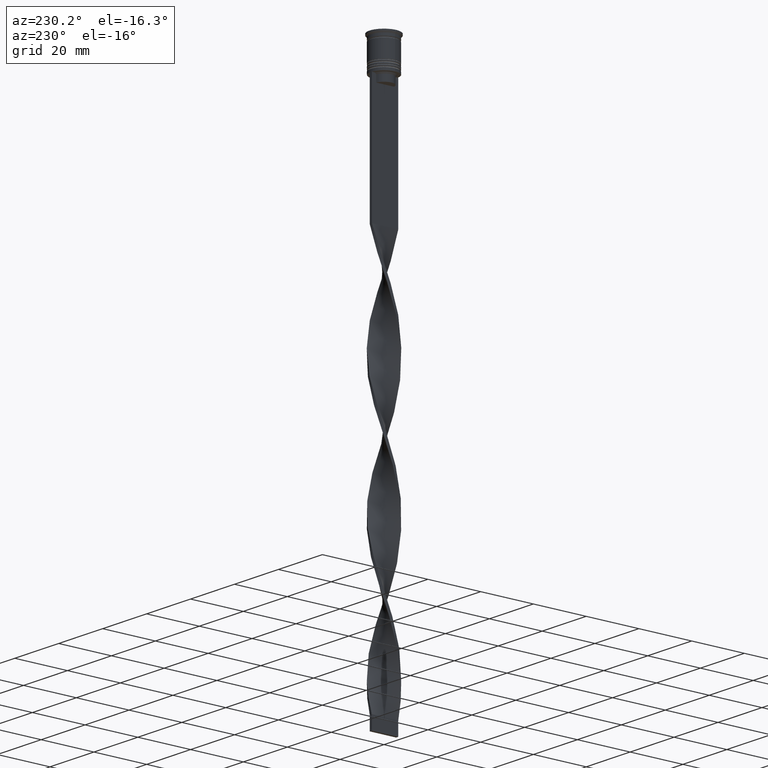
[diagram: clean part render]
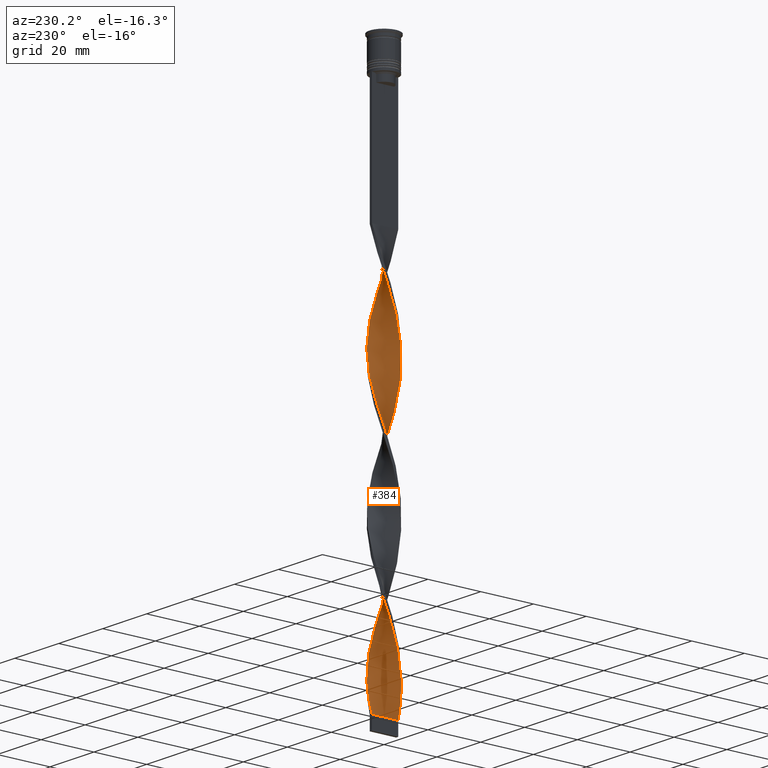
[diagram: same view with one face highlighted and labeled with its STEP entity id]
A machine part, auxiliary view. The second image highlights one B-rep face of the part: STEP entity #384.
In plain terms, the highlighted face is a freeform B-spline surface patch.
Its self-contained STEP definition (entity closure, byte-faithful):
#11 = CARTESIAN_POINT ( 'NONE',  ( 4.945959710900135420, -0.8874021287740040398, -78.95098039215686470 ) ) ;
#14 = CARTESIAN_POINT ( 'NONE',  ( 5.028189627835276454, -0.4290914677958224122, -80.41176470588234793 ) ) ;
#20 = CARTESIAN_POINT ( 'NONE',  ( -3.057269382251586176, -3.987869597209393824, -99.40196078431372939 ) ) ;
#24 = CARTESIAN_POINT ( 'NONE',  ( -4.500940532747438994, 2.282179822423430871, -77.49019607843138147 ) ) ;
#39 = CARTESIAN_POINT ( 'NONE',  ( -3.426799919866744482, -3.704571868705844206, -97.94117647058824616 ) ) ;
#43 = CARTESIAN_POINT ( 'NONE',  ( 5.028189627835276454, -0.4290914677958224122, -179.7450980392157476 ) ) ;
#85 = CARTESIAN_POINT ( 'NONE',  ( 2.207052246521970851, 4.514301760086748772, -198.7352941176470722 ) ) ;
#95 = CARTESIAN_POINT ( 'NONE',  ( -4.252947278887042160, -2.676273424560223546, -140.3039215686274588 ) ) ;
#96 = CARTESIAN_POINT ( 'NONE',  ( -1.339972216233586977, 4.842981980115355967, -163.6764705882352757 ) ) ;
#97 = CARTESIAN_POINT ( 'NONE',  ( 4.252947278887042160, 2.676273424560221770, -90.63725490196078738 ) ) ;
#116 = CARTESIAN_POINT ( 'NONE',  ( -0.9633182312101484790, -4.953668176878986529, -206.0392156862745026 ) ) ;
#131 = CARTESIAN_POINT ( 'NONE',  ( 2.687738844636428315, -4.271167325712943885, -65.80392156862747299 ) ) ;
#132 = CARTESIAN_POINT ( 'NONE',  ( -4.252947278887042160, -2.676273424560223546, -140.3039215686274588 ) ) ;
#155 = CARTESIAN_POINT ( 'NONE',  ( -2.207052246521971739, 4.514301760086749660, -166.5980392156862706 ) ) ;
#170 = CARTESIAN_POINT ( 'NONE',  ( -2.207052246521973515, -4.514301760086746995, -149.0686274509803866 ) ) ;
#178 = CARTESIAN_POINT ( 'NONE',  ( -4.945959710900135420, 0.8874021287740058161, -128.6176470588235361 ) ) ;
#199 = CARTESIAN_POINT ( 'NONE',  ( 1.788740585195521371, -4.718815268696139320, -115.4705882352940876 ) ) ;
#218 = CARTESIAN_POINT ( 'NONE',  ( -1.857150046639457708, -4.692313302143463538, -103.7843137254901933 ) ) ;
#237 = CARTESIAN_POINT ( 'NONE',  ( 0.8912038472716528048, -4.967148691534573501, -112.5490196078431495 ) ) ;
#240 = CARTESIAN_POINT ( 'NONE',  ( -4.698685634663580579, 1.781110133205158430, -125.6960784313725412 ) ) ;
#247 = VERTEX_POINT ( 'NONE', #352 ) ;
#261 = CARTESIAN_POINT ( 'NONE',  ( -0.03668176878985068140, -5.046331823121016136, -109.6274509803921546 ) ) ;
#279 = CARTESIAN_POINT ( 'NONE',  ( 3.057269382251587952, 3.987869597209392047, -149.0686274509803866 ) ) ;
#284 = CARTESIAN_POINT ( 'NONE',  ( -4.843652908908672394, 1.416275721470217741, -80.41176470588234793 ) ) ;
#288 = CARTESIAN_POINT ( 'NONE',  ( -1.339972216233586755, -4.842981980115355078, -151.9901960784313530 ) ) ;
#299 = CARTESIAN_POINT ( 'NONE',  ( -2.998973759622457269, 4.031892407926575217, -169.5196078431372371 ) ) ;
#301 = CARTESIAN_POINT ( 'NONE',  ( -2.998973759622457269, 4.031892407926575217, -70.18627450980390847 ) ) ;
#307 = CARTESIAN_POINT ( 'NONE',  ( 3.426799919866743149, -3.704571868705843318, -168.0588235294117680 ) ) ;
#312 = CARTESIAN_POINT ( 'NONE',  ( 0.8912038472716534709, 4.967148691534572613, -203.1176470588235361 ) ) ;
#319 = CARTESIAN_POINT ( 'NONE',  ( 4.291403454590827948, 2.614164568256161836, -143.2254901960784537 ) ) ;
#320 = CARTESIAN_POINT ( 'NONE',  ( -3.426799919866742261, 3.704571868705843318, -118.3921568627451109 ) ) ;
#324 = CARTESIAN_POINT ( 'NONE',  ( -0.03668176878985068140, -5.046331823121016136, -109.6274509803921404 ) ) ;
#334 = CARTESIAN_POINT ( 'NONE',  ( 1.410234138924802538, -4.822990739511222813, -160.7549019607842808 ) ) ;
#340 = CARTESIAN_POINT ( 'NONE',  ( 2.272444445637942234, -4.481740313928202823, -64.34313725490196134 ) ) ;
#346 = CARTESIAN_POINT ( 'NONE',  ( -4.945959710900137196, -0.8874021287740051500, -87.71568627450979250 ) ) ;
#351 = CARTESIAN_POINT ( 'NONE',  ( 1.857150046639456153, -4.692313302143462650, -162.2156862745098351 ) ) ;
#352 = CARTESIAN_POINT ( 'NONE',  ( 0.5000000000000000000, 5.000000000000000888, -58.50000000000000000 ) ) ;
#356 = CARTESIAN_POINT ( 'NONE',  ( 0.4272610392409007529, 5.006740257327792598, -204.5784313725490335 ) ) ;
#357 = CARTESIAN_POINT ( 'NONE',  ( 4.843652908908673282, -1.416275721470216187, -130.0784313725490335 ) ) ;
#368 = VERTEX_POINT ( 'NONE', #2453 ) ;
#376 = CARTESIAN_POINT ( 'NONE',  ( -1.410234138924802982, -4.822990739511224589, -204.5784313725490335 ) ) ;
#381 = CARTESIAN_POINT ( 'NONE',  ( -4.932536701743520879, -0.9592088854640250517, -134.4607843137254974 ) ) ;
#383 = CARTESIAN_POINT ( 'NONE',  ( -3.372583611396491321, 3.753996564375790435, -170.9803921568627629 ) ) ;
#384 = ADVANCED_FACE ( 'NONE', ( #1194 ), #2146, .T. ) ;
#399 = CARTESIAN_POINT ( 'NONE',  ( -3.426799919866744037, -3.704571868705844206, -197.2745098039215463 ) ) ;
#402 = CARTESIAN_POINT ( 'NONE',  ( 3.426799919866744926, 3.704571868705843762, -147.6078431372548891 ) ) ;
#419 = CARTESIAN_POINT ( 'NONE',  ( 4.698685634663579691, -1.781110133205159762, -175.3627450980391984 ) ) ;
#421 = CARTESIAN_POINT ( 'NONE',  ( 0.5000000000000000000, -4.999999999999999112, -58.50000000000000000 ) ) ;
#422 = CARTESIAN_POINT ( 'NONE',  ( -1.410234138924802982, -4.822990739511224589, -204.5784313725490335 ) ) ;
#437 = CARTESIAN_POINT ( 'NONE',  ( -0.03668176878985203448, 5.046331823121015248, -206.0392156862745026 ) ) ;
#440 = CARTESIAN_POINT ( 'NONE',  ( 0.9633182312101489231, -4.953668176878984752, -59.96078431372549744 ) ) ;
#441 = CARTESIAN_POINT ( 'NONE',  ( 5.021420494578371141, 0.5021420494578369143, -182.6666666666666572 ) ) ;
#462 = CARTESIAN_POINT ( 'NONE',  ( -5.028189627835278230, -0.4290914677958230783, -185.5882352941176237 ) ) ;
#466 = CARTESIAN_POINT ( 'NONE',  ( 0.03668176878985105610, 5.046331823121016136, -159.2941176470588118 ) ) ;
#469 = CARTESIAN_POINT ( 'NONE',  ( -2.207052246521971739, 4.514301760086749660, -67.26470588235292780 ) ) ;
#480 = CARTESIAN_POINT ( 'NONE',  ( -4.843652908908670618, -1.416275721470218185, -135.9215686274509665 ) ) ;
#486 = CARTESIAN_POINT ( 'NONE',  ( -0.8912038472716528048, 4.967148691534573501, -62.88235294117647811 ) ) ;
#493 = CARTESIAN_POINT ( 'NONE',  ( 3.372583611396490877, 3.753996564375789102, -194.3529411764705799 ) ) ;
#522 = CARTESIAN_POINT ( 'NONE',  ( 4.252947278887042160, 2.676273424560221770, -189.9705882352941160 ) ) ;
#529 = CARTESIAN_POINT ( 'NONE',  ( -4.533641475362164996, -2.216507476658135189, -92.09803921568628482 ) ) ;
#549 = CARTESIAN_POINT ( 'NONE',  ( -5.021420494578372917, 0.5021420494578375804, -83.33333333333332860 ) ) ;
#565 = CARTESIAN_POINT ( 'NONE',  ( 4.500940532747436329, 2.282179822423429982, -89.17647058823528994 ) ) ;
#590 = CARTESIAN_POINT ( 'NONE',  ( -4.698685634663581467, -1.781110133205160206, -90.63725490196078738 ) ) ;
#593 = CARTESIAN_POINT ( 'NONE',  ( -5.024805061206825130, 0.03652529083100775065, -84.79411764705882604 ) ) ;
#608 = CARTESIAN_POINT ( 'NONE',  ( -3.372583611396491321, 3.753996564375790879, -170.9803921568627629 ) ) ;
#609 = CARTESIAN_POINT ( 'NONE',  ( 0.8912038472716534709, 4.967148691534572613, -103.7843137254901933 ) ) ;
#611 = CARTESIAN_POINT ( 'NONE',  ( 2.625363907848422773, -4.309788251477360888, -118.3921568627451109 ) ) ;
#612 = EDGE_CURVE ( 'NONE', #2289, #2347, #847, .T. ) ;
#621 = CARTESIAN_POINT ( 'NONE',  ( 4.945959710900135420, -0.8874021287740040398, -78.95098039215686470 ) ) ;
#625 = CARTESIAN_POINT ( 'NONE',  ( -3.057269382251585732, 3.987869597209392047, -116.9313725490195992 ) ) ;
#627 = CARTESIAN_POINT ( 'NONE',  ( -3.737982676843116803, -3.358196764280017010, -96.48039215686274872 ) ) ;
#642 = CARTESIAN_POINT ( 'NONE',  ( 4.843652908908670618, 1.416275721470217741, -86.25490196078432348 ) ) ;
#648 = CARTESIAN_POINT ( 'NONE',  ( 4.698685634663580579, 1.781110133205161983, -140.3039215686274588 ) ) ;
#649 = CARTESIAN_POINT ( 'NONE',  ( -0.9633182312101493672, 4.953668176878984752, -109.6274509803921546 ) ) ;
#653 = CARTESIAN_POINT ( 'NONE',  ( -1.857150046639457708, -4.692313302143463538, -103.7843137254901791 ) ) ;
#659 = CARTESIAN_POINT ( 'NONE',  ( -4.932536701743521768, 0.9592088854640273832, -81.87254901960783116 ) ) ;
#670 = CARTESIAN_POINT ( 'NONE',  ( 1.410234138924801428, 4.822990739511224589, -154.9117647058823479 ) ) ;
#673 = CARTESIAN_POINT ( 'NONE',  ( -5.028189627835278230, -0.4290914677958230783, -86.25490196078432348 ) ) ;
#690 = CARTESIAN_POINT ( 'NONE',  ( -3.426799919866744482, -3.704571868705844206, -197.2745098039215463 ) ) ;
#706 = CARTESIAN_POINT ( 'NONE',  ( -4.500940532747438105, -2.282179822423428650, -138.8431372549019045 ) ) ;
#713 = CARTESIAN_POINT ( 'NONE',  ( -4.672296720828054362, 1.849227771946823751, -178.2843137254901933 ) ) ;
#730 = CARTESIAN_POINT ( 'NONE',  ( -4.004954025026648878, 3.070367026697015778, -173.9019607843137294 ) ) ;
#731 = CARTESIAN_POINT ( 'NONE',  ( 4.533641475362163220, -2.216507476658133413, -173.9019607843137294 ) ) ;
#735 = CARTESIAN_POINT ( 'NONE',  ( -3.057269382251586176, -3.987869597209393824, -198.7352941176470722 ) ) ;
#752 = CARTESIAN_POINT ( 'NONE',  ( -1.857150046639457708, -4.692313302143463538, -203.1176470588235361 ) ) ;
#753 = CARTESIAN_POINT ( 'NONE',  ( 5.028189627835276454, -0.4290914677958224122, -179.7450980392157192 ) ) ;
#764 = CARTESIAN_POINT ( 'NONE',  ( 3.688768818211569211, 3.412181795536400664, -192.8921568627450824 ) ) ;
#772 = CARTESIAN_POINT ( 'NONE',  ( -2.687738844636429647, -4.271167325712944773, -200.1960784313725981 ) ) ;
#773 = CARTESIAN_POINT ( 'NONE',  ( -1.788740585195520039, -4.718815268696138432, -150.5294117647058840 ) ) ;
#778 = CARTESIAN_POINT ( 'NONE',  ( 5.028189627835278230, 0.4290914677958235779, -135.9215686274509665 ) ) ;
#782 = CARTESIAN_POINT ( 'NONE',  ( -0.4272610392409009750, 5.006740257327794374, -61.42156862745097357 ) ) ;
#800 = CARTESIAN_POINT ( 'NONE',  ( -4.533641475362163220, 2.216507476658134745, -124.2352941176470580 ) ) ;
#804 = CARTESIAN_POINT ( 'NONE',  ( 1.339972216233586311, 4.842981980115355078, -201.6568627450980387 ) ) ;
#826 = CARTESIAN_POINT ( 'NONE',  ( 1.339972216233587865, -4.842981980115355967, -114.0098039215686185 ) ) ;
#847 = B_SPLINE_CURVE_WITH_KNOTS ( 'NONE', 3,
 ( #2789, #3956, #1257, #3667 ),
 .UNSPECIFIED., .F., .F.,
 ( 4, 4 ),
 ( 0.000000000000000000, 1.000000000000000000 ),
 .UNSPECIFIED. ) ;
#876 = CARTESIAN_POINT ( 'NONE',  ( 4.049165433819487347, -3.011821659854190703, -71.64705882352942012 ) ) ;
#895 = CARTESIAN_POINT ( 'NONE',  ( 0.9633182312101489231, -4.953668176878983864, -59.96078431372549034 ) ) ;
#901 = CARTESIAN_POINT ( 'NONE',  ( -4.672296720828054362, 1.849227771946823751, -78.95098039215686470 ) ) ;
#914 = CARTESIAN_POINT ( 'NONE',  ( 2.207052246521970851, 4.514301760086748772, -99.40196078431372939 ) ) ;
#922 = CARTESIAN_POINT ( 'NONE',  ( -1.339972216233586977, 4.842981980115355967, -163.6764705882352757 ) ) ;
#926 = CARTESIAN_POINT ( 'NONE',  ( 1.788740585195521371, -4.718815268696139320, -115.4705882352941018 ) ) ;
#931 = CARTESIAN_POINT ( 'NONE',  ( -1.788740585195520039, -4.718815268696138432, -150.5294117647058840 ) ) ;
#945 = CARTESIAN_POINT ( 'NONE',  ( 4.672296720828054362, -1.849227771946825527, -128.6176470588235361 ) ) ;
#947 = ORIENTED_EDGE ( 'NONE', *, *, #1503, .T. ) ;
#953 = CARTESIAN_POINT ( 'NONE',  ( 4.252947278887042160, 2.676273424560221770, -90.63725490196078738 ) ) ;
#959 = CARTESIAN_POINT ( 'NONE',  ( -4.004954025026648878, 3.070367026697015778, -74.56862745098038658 ) ) ;
#965 = CARTESIAN_POINT ( 'NONE',  ( -4.672296720828054362, 1.849227771946823751, -78.95098039215686470 ) ) ;
#970 = CARTESIAN_POINT ( 'NONE',  ( 3.688768818211569211, 3.412181795536400664, -192.8921568627450824 ) ) ;
#971 = CARTESIAN_POINT ( 'NONE',  ( -2.207052246521973515, -4.514301760086746995, -149.0686274509803866 ) ) ;
#983 = CARTESIAN_POINT ( 'NONE',  ( -4.698685634663581467, -1.781110133205160206, -90.63725490196078738 ) ) ;
#992 = CARTESIAN_POINT ( 'NONE',  ( 3.372583611396490433, 3.753996564375789102, -194.3529411764705799 ) ) ;
#993 = CARTESIAN_POINT ( 'NONE',  ( 0.5000000000000000000, -4.999999999999999112, -157.8333333333333144 ) ) ;
#1003 = CARTESIAN_POINT ( 'NONE',  ( -0.4272610392409009750, 5.006740257327794374, -160.7549019607842808 ) ) ;
#1017 = CARTESIAN_POINT ( 'NONE',  ( 4.533641475362163220, -2.216507476658133413, -74.56862745098038658 ) ) ;
#1018 = CARTESIAN_POINT ( 'NONE',  ( 0.5000000000000000000, -4.999999999999999112, -157.8333333333333144 ) ) ;
#1022 = CARTESIAN_POINT ( 'NONE',  ( 0.5000000000000000000, 5.000000000000000888, -157.8333333333333144 ) ) ;
#1033 = CARTESIAN_POINT ( 'NONE',  ( 4.291403454590825284, -2.614164568256161836, -172.4411764705882035 ) ) ;
#1040 = CARTESIAN_POINT ( 'NONE',  ( -4.533641475362164996, -2.216507476658135189, -191.4313725490196134 ) ) ;
#1054 = CARTESIAN_POINT ( 'NONE',  ( 4.945959710900135420, -0.8874021287740040398, -178.2843137254901933 ) ) ;
#1057 = CARTESIAN_POINT ( 'NONE',  ( -5.028189627835278230, -0.4290914677958230783, -185.5882352941176237 ) ) ;
#1072 = CARTESIAN_POINT ( 'NONE',  ( -4.500940532747438994, 2.282179822423430871, -176.8235294117647243 ) ) ;
#1075 = CARTESIAN_POINT ( 'NONE',  ( -2.687738844636430091, -4.271167325712943885, -200.1960784313725696 ) ) ;
#1090 = CARTESIAN_POINT ( 'NONE',  ( -2.272444445637943122, -4.481740313928203712, -201.6568627450980387 ) ) ;
#1091 = CARTESIAN_POINT ( 'NONE',  ( -3.372583611396489101, -3.753996564375790435, -144.6862745098039227 ) ) ;
#1100 = CARTESIAN_POINT ( 'NONE',  ( -3.688768818211570100, 3.412181795536402440, -73.10784313725488914 ) ) ;
#1125 = CARTESIAN_POINT ( 'NONE',  ( -2.687738844636429647, -4.271167325712944773, -100.8627450980392126 ) ) ;
#1127 = ORIENTED_EDGE ( 'NONE', *, *, #612, .F. ) ;
#1157 = CARTESIAN_POINT ( 'NONE',  ( -2.272444445637943122, -4.481740313928203712, -102.3235294117646959 ) ) ;
#1169 = ORIENTED_EDGE ( 'NONE', *, *, #3765, .F. ) ;
#1185 = CARTESIAN_POINT ( 'NONE',  ( 4.004954025026647990, -3.070367026697017110, -124.2352941176470580 ) ) ;
#1193 = CARTESIAN_POINT ( 'NONE',  ( -0.4999999999999993339, 4.999999999999999112, -108.1666666666666572 ) ) ;
#1194 = FACE_OUTER_BOUND ( 'NONE', #3635, .T. ) ;
#1203 = CARTESIAN_POINT ( 'NONE',  ( -3.426799919866744037, -3.704571868705844206, -97.94117647058824616 ) ) ;
#1215 = CARTESIAN_POINT ( 'NONE',  ( 4.672296720828052585, 1.849227771946823973, -87.71568627450979250 ) ) ;
#1222 = CARTESIAN_POINT ( 'NONE',  ( 0.4272610392408998647, -5.006740257327794374, -111.0882352941176379 ) ) ;
#1245 = CARTESIAN_POINT ( 'NONE',  ( 1.788740585195521593, 4.718815268696137544, -100.8627450980392126 ) ) ;
#1248 = CARTESIAN_POINT ( 'NONE',  ( 2.998973759622457269, -4.031892407926575217, -119.8529411764705799 ) ) ;
#1255 = CARTESIAN_POINT ( 'NONE',  ( 4.252947278887042160, 2.676273424560221770, -189.9705882352941160 ) ) ;
#1257 = CARTESIAN_POINT ( 'NONE',  ( -0.4999999999999997780, 1.666666666666666075, -207.5000000000000000 ) ) ;
#1259 = CARTESIAN_POINT ( 'NONE',  ( 5.028189627835276454, -0.4290914677958224122, -80.41176470588234793 ) ) ;
#1262 = CARTESIAN_POINT ( 'NONE',  ( 5.024805061206822465, 0.03652529083100720941, -81.87254901960783116 ) ) ;
#1273 = CARTESIAN_POINT ( 'NONE',  ( 5.021420494578372029, 0.5021420494578369143, -182.6666666666666856 ) ) ;
#1274 = CARTESIAN_POINT ( 'NONE',  ( 4.049165433819487347, -3.011821659854190703, -170.9803921568627629 ) ) ;
#1299 = CARTESIAN_POINT ( 'NONE',  ( -0.5000000000000006661, -5.000000000000000888, -207.5000000000000000 ) ) ;
#1301 = CARTESIAN_POINT ( 'NONE',  ( -0.4272610392409009750, 5.006740257327794374, -61.42156862745097357 ) ) ;
#1313 = CARTESIAN_POINT ( 'NONE',  ( 4.291403454590825284, -2.614164568256161836, -73.10784313725488914 ) ) ;
#1314 = CARTESIAN_POINT ( 'NONE',  ( 2.625363907848422773, 4.309788251477359111, -97.94117647058824616 ) ) ;
#1319 = CARTESIAN_POINT ( 'NONE',  ( -4.500940532747437217, -2.282179822423429094, -138.8431372549019329 ) ) ;
#1320 = CARTESIAN_POINT ( 'NONE',  ( -0.5000000000000006661, -5.000000000000000888, -207.5000000000000000 ) ) ;
#1334 = CARTESIAN_POINT ( 'NONE',  ( 3.426799919866742705, -3.704571868705843318, -168.0588235294117680 ) ) ;
#1337 = CARTESIAN_POINT ( 'NONE',  ( -4.004954025026647102, -3.070367026697014889, -141.7647058823529562 ) ) ;
#1338 = CARTESIAN_POINT ( 'NONE',  ( 1.410234138924801428, 4.822990739511224589, -154.9117647058823479 ) ) ;
#1356 = CARTESIAN_POINT ( 'NONE',  ( 4.863729793964998827, -1.345712789752187000, -176.8235294117647243 ) ) ;
#1360 = CARTESIAN_POINT ( 'NONE',  ( -4.932536701743521768, 0.9592088854640273832, -181.2058823529411598 ) ) ;
#1374 = CARTESIAN_POINT ( 'NONE',  ( 3.426799919866742705, -3.704571868705843318, -68.72549019607842524 ) ) ;
#1375 = CARTESIAN_POINT ( 'NONE',  ( 2.272444445637942234, -4.481740313928202823, -163.6764705882352757 ) ) ;
#1388 = CARTESIAN_POINT ( 'NONE',  ( -2.998973759622455493, -4.031892407926574329, -146.1470588235294201 ) ) ;
#1426 = CARTESIAN_POINT ( 'NONE',  ( -1.410234138924801428, 4.822990739511222813, -111.0882352941176379 ) ) ;
#1440 = CARTESIAN_POINT ( 'NONE',  ( 2.207052246521972183, -4.514301760086749660, -116.9313725490195992 ) ) ;
#1443 = CARTESIAN_POINT ( 'NONE',  ( -4.863729793964998827, 1.345712789752186778, -127.1568627450980244 ) ) ;
#1450 = CARTESIAN_POINT ( 'NONE',  ( 4.863729793964998827, -1.345712789752187000, -176.8235294117647243 ) ) ;
#1476 = CARTESIAN_POINT ( 'NONE',  ( 2.998973759622457269, -4.031892407926575217, -119.8529411764705799 ) ) ;
#1503 = EDGE_CURVE ( 'NONE', #368, #2347, #2962, .T. ) ;
#1516 = CARTESIAN_POINT ( 'NONE',  ( 0.9633182312101491451, 4.953668176878986529, -156.3725490196078454 ) ) ;
#1519 = CARTESIAN_POINT ( 'NONE',  ( -0.5000000000000006661, -5.000000000000000888, -108.1666666666666572 ) ) ;
#1524 = CARTESIAN_POINT ( 'NONE',  ( 4.932536701743520879, 0.9592088854640268281, -184.1274509803921546 ) ) ;
#1525 = CARTESIAN_POINT ( 'NONE',  ( -0.8912038472716541371, -4.967148691534571725, -153.4509803921568789 ) ) ;
#1530 = CARTESIAN_POINT ( 'NONE',  ( 5.021420494578372029, 0.5021420494578369143, -83.33333333333332860 ) ) ;
#1539 = CARTESIAN_POINT ( 'NONE',  ( -3.372583611396491321, 3.753996564375790435, -71.64705882352942012 ) ) ;
#1555 = CARTESIAN_POINT ( 'NONE',  ( 1.857150046639456153, -4.692313302143462650, -62.88235294117647101 ) ) ;
#1560 = CARTESIAN_POINT ( 'NONE',  ( 4.863729793965001491, 1.345712789752185889, -138.8431372549019045 ) ) ;
#1564 = CARTESIAN_POINT ( 'NONE',  ( 0.8912038472716528048, -4.967148691534573501, -112.5490196078431495 ) ) ;
#1573 = CARTESIAN_POINT ( 'NONE',  ( 3.057269382251585288, -3.987869597209392936, -166.5980392156862706 ) ) ;
#1578 = CARTESIAN_POINT ( 'NONE',  ( 3.057269382251585288, -3.987869597209392936, -67.26470588235292780 ) ) ;
#1583 = CARTESIAN_POINT ( 'NONE',  ( 4.500940532747438105, -2.282179822423430871, -127.1568627450980244 ) ) ;
#1595 = CARTESIAN_POINT ( 'NONE',  ( 4.932536701743522656, -0.9592088854640269391, -131.5392156862745310 ) ) ;
#1600 = CARTESIAN_POINT ( 'NONE',  ( -4.252947278887043936, 2.676273424560223102, -76.02941176470586981 ) ) ;
#1617 = CARTESIAN_POINT ( 'NONE',  ( -3.688768818211570100, 3.412181795536402440, -172.4411764705882035 ) ) ;
#1623 = CARTESIAN_POINT ( 'NONE',  ( -1.788740585195521815, 4.718815268696139320, -165.1372549019608016 ) ) ;
#1639 = CARTESIAN_POINT ( 'NONE',  ( 0.5000000000000000000, -4.999999999999999112, -58.50000000000000000 ) ) ;
#1640 = CARTESIAN_POINT ( 'NONE',  ( -0.4272610392408992541, -5.006740257327792598, -154.9117647058823479 ) ) ;
#1643 = CARTESIAN_POINT ( 'NONE',  ( -4.049165433819489124, -3.011821659854192035, -194.3529411764705799 ) ) ;
#1661 = CARTESIAN_POINT ( 'NONE',  ( -4.004954025026648878, 3.070367026697015778, -173.9019607843137294 ) ) ;
#1679 = CARTESIAN_POINT ( 'NONE',  ( -5.024805061206825130, 0.03652529083100775065, -184.1274509803921546 ) ) ;
#1684 = CARTESIAN_POINT ( 'NONE',  ( -3.737982676843116803, -3.358196764280017010, -195.8137254901960773 ) ) ;
#1702 = CARTESIAN_POINT ( 'NONE',  ( 1.410234138924802538, -4.822990739511222813, -61.42156862745097357 ) ) ;
#1703 = CARTESIAN_POINT ( 'NONE',  ( -4.004954025026647102, -3.070367026697014889, -141.7647058823529562 ) ) ;
#1709 = CARTESIAN_POINT ( 'NONE',  ( -0.8912038472716528048, 4.967148691534573501, -162.2156862745098351 ) ) ;
#1712 = CARTESIAN_POINT ( 'NONE',  ( -2.625363907848424105, 4.309788251477359999, -68.72549019607842524 ) ) ;
#1721 = CARTESIAN_POINT ( 'NONE',  ( -0.8912038472716541371, -4.967148691534571725, -153.4509803921568789 ) ) ;
#1732 = CARTESIAN_POINT ( 'NONE',  ( -0.9633182312101493672, 4.953668176878983864, -109.6274509803921404 ) ) ;
#1748 = CARTESIAN_POINT ( 'NONE',  ( -0.9633182312101485900, -4.953668176878986529, -106.7058823529412024 ) ) ;
#1749 = CARTESIAN_POINT ( 'NONE',  ( 3.688768818211569211, 3.412181795536400664, -93.55882352941176805 ) ) ;
#1789 = CARTESIAN_POINT ( 'NONE',  ( 0.4272610392408998647, -5.006740257327794374, -111.0882352941176379 ) ) ;
#1832 = CARTESIAN_POINT ( 'NONE',  ( -0.4272610392409009750, 5.006740257327794374, -160.7549019607842808 ) ) ;
#1836 = CARTESIAN_POINT ( 'NONE',  ( -4.533641475362164996, -2.216507476658135189, -92.09803921568628482 ) ) ;
#1849 = CARTESIAN_POINT ( 'NONE',  ( -2.625363907848424105, 4.309788251477359999, -168.0588235294117680 ) ) ;
#1850 = CARTESIAN_POINT ( 'NONE',  ( 0.4272610392409007529, 5.006740257327792598, -105.2450980392156765 ) ) ;
#1861 = CARTESIAN_POINT ( 'NONE',  ( 2.687738844636428759, -4.271167325712942997, -165.1372549019608016 ) ) ;
#1864 = CARTESIAN_POINT ( 'NONE',  ( -0.4999999999999993339, 4.999999999999999112, -207.5000000000000000 ) ) ;
#1874 = CARTESIAN_POINT ( 'NONE',  ( -0.8912038472716528048, 4.967148691534573501, -62.88235294117647101 ) ) ;
#1896 = CARTESIAN_POINT ( 'NONE',  ( 2.687738844636428759, 4.271167325712946550, -150.5294117647058840 ) ) ;
#1900 = CARTESIAN_POINT ( 'NONE',  ( 4.252947278887044824, -2.676273424560221770, -125.6960784313725412 ) ) ;
#1916 = CARTESIAN_POINT ( 'NONE',  ( -1.410234138924802982, -4.822990739511224589, -105.2450980392156765 ) ) ;
#1920 = CARTESIAN_POINT ( 'NONE',  ( 0.03668176878985138917, -5.046331823121015248, -156.3725490196078454 ) ) ;
#1927 = CARTESIAN_POINT ( 'NONE',  ( -4.843652908908672394, 1.416275721470217963, -179.7450980392157192 ) ) ;
#1932 = CARTESIAN_POINT ( 'NONE',  ( -2.272444445637943122, -4.481740313928203712, -201.6568627450980387 ) ) ;
#1948 = CARTESIAN_POINT ( 'NONE',  ( -3.688768818211570100, -3.412181795536400664, -143.2254901960784537 ) ) ;
#1953 = CARTESIAN_POINT ( 'NONE',  ( -5.021420494578373805, 0.5021420494578375804, -182.6666666666666856 ) ) ;
#1967 = CARTESIAN_POINT ( 'NONE',  ( -4.932536701743521768, 0.9592088854640273832, -181.2058823529411598 ) ) ;
#1968 = CARTESIAN_POINT ( 'NONE',  ( -3.737982676843115026, 3.358196764280016566, -119.8529411764705799 ) ) ;
#1971 = CARTESIAN_POINT ( 'NONE',  ( 4.863729793965001491, 1.345712789752185667, -138.8431372549019329 ) ) ;
#1982 = CARTESIAN_POINT ( 'NONE',  ( -0.9633182312101485900, -4.953668176878986529, -206.0392156862745026 ) ) ;
#1983 = CARTESIAN_POINT ( 'NONE',  ( -4.863729793964998827, 1.345712789752186778, -127.1568627450980102 ) ) ;
#2004 = CARTESIAN_POINT ( 'NONE',  ( -3.737982676843116803, -3.358196764280017010, -195.8137254901960773 ) ) ;
#2005 = CARTESIAN_POINT ( 'NONE',  ( -4.672296720828052585, -1.849227771946823307, -137.3823529411764639 ) ) ;
#2011 = CARTESIAN_POINT ( 'NONE',  ( 3.057269382251587952, 3.987869597209392047, -149.0686274509803866 ) ) ;
#2013 = CARTESIAN_POINT ( 'NONE',  ( -1.339972216233586977, 4.842981980115355967, -64.34313725490196134 ) ) ;
#2029 = CARTESIAN_POINT ( 'NONE',  ( -4.252947278887043936, 2.676273424560223102, -76.02941176470586981 ) ) ;
#2045 = CARTESIAN_POINT ( 'NONE',  ( -0.5000000000000006661, -5.000000000000000888, -108.1666666666666572 ) ) ;
#2080 = CARTESIAN_POINT ( 'NONE',  ( 4.004954025026647102, 3.070367026697015778, -191.4313725490196134 ) ) ;
#2089 = CARTESIAN_POINT ( 'NONE',  ( -2.272444445637943122, 4.481740313928201935, -114.0098039215686185 ) ) ;
#2098 = CARTESIAN_POINT ( 'NONE',  ( 4.291403454590825284, -2.614164568256161836, -73.10784313725488914 ) ) ;
#2109 = CARTESIAN_POINT ( 'NONE',  ( 2.625363907848422773, 4.309788251477359111, -197.2745098039215463 ) ) ;
#2139 = CARTESIAN_POINT ( 'NONE',  ( 0.8912038472716534709, 4.967148691534572613, -103.7843137254901791 ) ) ;
#2143 = CARTESIAN_POINT ( 'NONE',  ( -1.788740585195521815, 4.718815268696139320, -165.1372549019608016 ) ) ;
#2144 = CARTESIAN_POINT ( 'NONE',  ( -1.788740585195521815, 4.718815268696139320, -65.80392156862745878 ) ) ;
#2146 =( BOUNDED_SURFACE ( )  B_SPLINE_SURFACE ( 1, 2, ( 
 ( #2147, #3375, #782, #486, #2013, #3237, #469, #1712, #3847, #2634, #1100, #2326, #2029, #24, #965, #2194, #659, #549, #2425, #2658, #2737, #3631, #590, #529, #3021, #2960, #3003, #1203, #3874, #1125, #1157, #218, #3652, #1748, #2045, #261, #1789, #237, #826, #199, #1440, #3610, #1476, #2679, #2715, #1185, #2754, #2814, #3714, #357, #1595, #2204, #2506, #3406, #3984, #1560, #648, #3697, #319, #3061, #3964, #3754, #279, #1896, #3733, #3428, #670, #1516, #2528, #2222, #1832, #3677, #922, #2143, #3368, #1849, #299, #608, #1617, #730, #2609, #1072, #2566, #1927, #1967, #2297, #1679, #462, #3190, #3228, #3808, #3522, #3148, #2545, #2004, #399, #2893, #772, #1090, #752, #376, #1982, #3206 ),
 ( #1639, #440, #1702, #2936, #2917, #131, #2853, #1374, #2241, #2873, #1313, #1017, #3460, #2792, #11, #1259, #2862, #2187, #3414, #2209, #2635, #2303, #97, #3531, #1749, #3022, #3444, #1314, #3369, #1245, #3081, #609, #1850, #2772, #2470, #649, #2161, #2180, #3407, #3387, #625, #320, #1968, #2242, #3549, #800, #2317, #1983, #3487, #3523, #2279, #3770, #2589, #480, #2005, #706, #132, #1703, #1948, #1091, #1388, #2546, #170, #773, #2627, #1721, #1640, #2954, #1018, #3461, #2874, #3505, #1375, #3191, #2258, #1334, #2567, #3786, #1033, #731, #419, #1356, #1054, #753, #3207, #441, #2918, #2610, #3825, #2341, #522, #2080, #764, #493, #2970, #2109, #3658, #2322, #804, #2504, #356, #437, #2526 ) ),
 .UNSPECIFIED., .F., .F., .F. ) 
 B_SPLINE_SURFACE_WITH_KNOTS ( ( 2, 2 ),
 ( 3, 2, 2, 2, 2, 2, 2, 2, 2, 2, 2, 2, 2, 2, 2, 2, 2, 2, 2, 2, 2, 2, 2, 2, 2, 2, 2, 2, 2, 2, 2, 2, 2, 2, 2, 2, 2, 2, 2, 2, 2, 2, 2, 2, 2, 2, 2, 2, 2, 2, 2, 3 ),
 ( 0.000000000000000000, 1.000000000000000000 ),
 ( 0.000000000000000000, 0.01470588235294117627, 0.02941176470588235253, 0.04411764705882353227, 0.05882352941176470507, 0.07352941176470588480, 0.08823529411764706454, 0.1029411764705882304, 0.1176470588235294101, 0.1323529411764705899, 0.1470588235294117696, 0.1617647058823529493, 0.1764705882352941291, 0.1911764705882352811, 0.2058823529411764608, 0.2205882352941176405, 0.2352941176470588203, 0.2500000000000000000, 0.2647058823529411797, 0.2794117647058823595, 0.2941176470588235392, 0.3088235294117647189, 0.3235294117647058987, 0.3382352941176470784, 0.3529411764705882582, 0.3676470588235294379, 0.3823529411764705621, 0.3970588235294117418, 0.4117647058823529216, 0.4264705882352941013, 0.4411764705882352811, 0.4558823529411764608, 0.4705882352941176405, 0.4852941176470588203, 0.5000000000000000000, 0.5147058823529411242, 0.5294117647058823595, 0.5441176470588234837, 0.5588235294117647189, 0.5735294117647058432, 0.5882352941176470784, 0.6029411764705882026, 0.6176470588235294379, 0.6323529411764705621, 0.6470588235294117974, 0.6617647058823529216, 0.6764705882352941568, 0.6911764705882352811, 0.7058823529411765163, 0.7205882352941176405, 0.7352941176470588758, 0.7500000000000000000 ),
 .UNSPECIFIED. ) 
 GEOMETRIC_REPRESENTATION_ITEM ( )  RATIONAL_B_SPLINE_SURFACE ( (
 ( 1.000000000000000000, 0.9957341762950344677, 1.000000000000000000, 0.9957341762950344677, 1.000000000000000000, 0.9957341762950344677, 1.000000000000000000, 0.9957341762950344677, 1.000000000000000000, 0.9957341762950344677, 1.000000000000000000, 0.9957341762950344677, 1.000000000000000000, 0.9957341762950344677, 1.000000000000000000, 0.9957341762950344677, 1.000000000000000000, 0.9957341762950344677, 1.000000000000000000, 0.9957341762950344677, 1.000000000000000000, 0.9957341762950344677, 1.000000000000000000, 0.9957341762950344677, 1.000000000000000000, 0.9957341762950344677, 1.000000000000000000, 0.9957341762950344677, 1.000000000000000000, 0.9957341762950344677, 1.000000000000000000, 0.9957341762950344677, 1.000000000000000000, 0.9957341762950344677, 1.000000000000000000, 0.9957341762950344677, 1.000000000000000000, 0.9957341762950344677, 1.000000000000000000, 0.9957341762950344677, 1.000000000000000000, 0.9957341762950344677, 1.000000000000000000, 0.9957341762950344677, 1.000000000000000000, 0.9957341762950344677, 1.000000000000000000, 0.9957341762950344677, 1.000000000000000000, 0.9957341762950344677, 1.000000000000000000, 0.9957341762950344677, 1.000000000000000000, 0.9957341762950344677, 1.000000000000000000, 0.9957341762950344677, 1.000000000000000000, 0.9957341762950344677, 1.000000000000000000, 0.9957341762950344677, 1.000000000000000000, 0.9957341762950344677, 1.000000000000000000, 0.9957341762950344677, 1.000000000000000000, 0.9957341762950344677, 1.000000000000000000, 0.9957341762950344677, 1.000000000000000000, 0.9957341762950344677, 1.000000000000000000, 0.9957341762950344677, 1.000000000000000000, 0.9957341762950344677, 1.000000000000000000, 0.9957341762950344677, 1.000000000000000000, 0.9957341762950344677, 1.000000000000000000, 0.9957341762950344677, 1.000000000000000000, 0.9957341762950344677, 1.000000000000000000, 0.9957341762950344677, 1.000000000000000000, 0.9957341762950344677, 1.000000000000000000, 0.9957341762950344677, 1.000000000000000000, 0.9957341762950344677, 1.000000000000000000, 0.9957341762950344677, 1.000000000000000000, 0.9957341762950344677, 1.000000000000000000, 0.9957341762950344677, 1.000000000000000000, 0.9957341762950344677, 1.000000000000000000, 0.9957341762950344677, 1.000000000000000000, 0.9957341762950344677, 1.000000000000000000),
 ( 1.000000000000000000, 0.9957341762950344677, 1.000000000000000000, 0.9957341762950344677, 1.000000000000000000, 0.9957341762950344677, 1.000000000000000000, 0.9957341762950344677, 1.000000000000000000, 0.9957341762950344677, 1.000000000000000000, 0.9957341762950344677, 1.000000000000000000, 0.9957341762950344677, 1.000000000000000000, 0.9957341762950344677, 1.000000000000000000, 0.9957341762950344677, 1.000000000000000000, 0.9957341762950344677, 1.000000000000000000, 0.9957341762950344677, 1.000000000000000000, 0.9957341762950344677, 1.000000000000000000, 0.9957341762950344677, 1.000000000000000000, 0.9957341762950344677, 1.000000000000000000, 0.9957341762950344677, 1.000000000000000000, 0.9957341762950344677, 1.000000000000000000, 0.9957341762950344677, 1.000000000000000000, 0.9957341762950344677, 1.000000000000000000, 0.9957341762950344677, 1.000000000000000000, 0.9957341762950344677, 1.000000000000000000, 0.9957341762950344677, 1.000000000000000000, 0.9957341762950344677, 1.000000000000000000, 0.9957341762950344677, 1.000000000000000000, 0.9957341762950344677, 1.000000000000000000, 0.9957341762950344677, 1.000000000000000000, 0.9957341762950344677, 1.000000000000000000, 0.9957341762950344677, 1.000000000000000000, 0.9957341762950344677, 1.000000000000000000, 0.9957341762950344677, 1.000000000000000000, 0.9957341762950344677, 1.000000000000000000, 0.9957341762950344677, 1.000000000000000000, 0.9957341762950344677, 1.000000000000000000, 0.9957341762950344677, 1.000000000000000000, 0.9957341762950344677, 1.000000000000000000, 0.9957341762950344677, 1.000000000000000000, 0.9957341762950344677, 1.000000000000000000, 0.9957341762950344677, 1.000000000000000000, 0.9957341762950344677, 1.000000000000000000, 0.9957341762950344677, 1.000000000000000000, 0.9957341762950344677, 1.000000000000000000, 0.9957341762950344677, 1.000000000000000000, 0.9957341762950344677, 1.000000000000000000, 0.9957341762950344677, 1.000000000000000000, 0.9957341762950344677, 1.000000000000000000, 0.9957341762950344677, 1.000000000000000000, 0.9957341762950344677, 1.000000000000000000, 0.9957341762950344677, 1.000000000000000000, 0.9957341762950344677, 1.000000000000000000, 0.9957341762950344677, 1.000000000000000000, 0.9957341762950344677, 1.000000000000000000, 0.9957341762950344677, 1.000000000000000000) ) ) 
 REPRESENTATION_ITEM ( '' )  SURFACE ( )  );
#2147 = CARTESIAN_POINT ( 'NONE',  ( 0.5000000000000000000, 5.000000000000000888, -58.50000000000000000 ) ) ;
#2161 = CARTESIAN_POINT ( 'NONE',  ( -1.410234138924801428, 4.822990739511222813, -111.0882352941176379 ) ) ;
#2163 = CARTESIAN_POINT ( 'NONE',  ( 0.03668176878985105610, 5.046331823121016136, -59.96078431372549034 ) ) ;
#2172 = CARTESIAN_POINT ( 'NONE',  ( 4.945959710900135420, -0.8874021287740040398, -178.2843137254901933 ) ) ;
#2180 = CARTESIAN_POINT ( 'NONE',  ( -1.857150046639456153, 4.692313302143462650, -112.5490196078431495 ) ) ;
#2183 = CARTESIAN_POINT ( 'NONE',  ( -2.687738844636430091, -4.271167325712943885, -100.8627450980392126 ) ) ;
#2187 = CARTESIAN_POINT ( 'NONE',  ( 5.021420494578371141, 0.5021420494578369143, -83.33333333333332860 ) ) ;
#2194 = CARTESIAN_POINT ( 'NONE',  ( -4.843652908908672394, 1.416275721470217963, -80.41176470588234793 ) ) ;
#2204 = CARTESIAN_POINT ( 'NONE',  ( 5.021420494578372917, -0.5021420494578382465, -133.0000000000000000 ) ) ;
#2207 = CARTESIAN_POINT ( 'NONE',  ( -0.9633182312101484790, -4.953668176878986529, -106.7058823529411882 ) ) ;
#2209 = CARTESIAN_POINT ( 'NONE',  ( 4.843652908908670618, 1.416275721470217963, -86.25490196078432348 ) ) ;
#2213 = CARTESIAN_POINT ( 'NONE',  ( 2.998973759622456825, 4.031892407926573441, -195.8137254901960773 ) ) ;
#2214 = CARTESIAN_POINT ( 'NONE',  ( 4.698685634663579691, -1.781110133205159762, -175.3627450980391984 ) ) ;
#2222 = CARTESIAN_POINT ( 'NONE',  ( 0.03668176878985105610, 5.046331823121016136, -159.2941176470588118 ) ) ;
#2226 = CARTESIAN_POINT ( 'NONE',  ( 5.021420494578373805, -0.5021420494578382465, -133.0000000000000000 ) ) ;
#2232 = CARTESIAN_POINT ( 'NONE',  ( 2.625363907848422773, 4.309788251477359111, -197.2745098039215463 ) ) ;
#2233 = CARTESIAN_POINT ( 'NONE',  ( -2.625363907848423661, -4.309788251477358223, -147.6078431372548891 ) ) ;
#2241 = CARTESIAN_POINT ( 'NONE',  ( 3.737982676843115026, -3.358196764280016566, -70.18627450980390847 ) ) ;
#2242 = CARTESIAN_POINT ( 'NONE',  ( -4.049165433819488236, 3.011821659854190703, -121.3137254901960631 ) ) ;
#2244 = LINE ( 'NONE', #421, #3352 ) ;
#2245 = CARTESIAN_POINT ( 'NONE',  ( -2.998973759622457269, 4.031892407926575217, -169.5196078431372371 ) ) ;
#2258 = CARTESIAN_POINT ( 'NONE',  ( 3.057269382251585288, -3.987869597209392936, -166.5980392156862706 ) ) ;
#2263 = CARTESIAN_POINT ( 'NONE',  ( 4.291403454590827948, 2.614164568256161836, -143.2254901960784537 ) ) ;
#2279 = CARTESIAN_POINT ( 'NONE',  ( -5.024805061206823353, -0.03652529083100779922, -131.5392156862745310 ) ) ;
#2289 = VERTEX_POINT ( 'NONE', #1299 ) ;
#2297 = CARTESIAN_POINT ( 'NONE',  ( -5.021420494578372917, 0.5021420494578375804, -182.6666666666666572 ) ) ;
#2301 = CARTESIAN_POINT ( 'NONE',  ( 4.945959710900137196, 0.8874021287740044839, -137.3823529411764639 ) ) ;
#2303 = CARTESIAN_POINT ( 'NONE',  ( 4.500940532747437217, 2.282179822423429982, -89.17647058823527573 ) ) ;
#2317 = CARTESIAN_POINT ( 'NONE',  ( -4.698685634663580579, 1.781110133205158430, -125.6960784313725412 ) ) ;
#2322 = CARTESIAN_POINT ( 'NONE',  ( 1.788740585195521593, 4.718815268696137544, -200.1960784313725981 ) ) ;
#2326 = CARTESIAN_POINT ( 'NONE',  ( -4.004954025026648878, 3.070367026697015778, -74.56862745098038658 ) ) ;
#2341 = CARTESIAN_POINT ( 'NONE',  ( 4.500940532747437217, 2.282179822423429982, -188.5098039215686185 ) ) ;
#2347 = VERTEX_POINT ( 'NONE', #2530 ) ;
#2410 = CARTESIAN_POINT ( 'NONE',  ( -1.857150046639456153, 4.692313302143462650, -112.5490196078431495 ) ) ;
#2416 = CARTESIAN_POINT ( 'NONE',  ( 0.4272610392409007529, 5.006740257327792598, -204.5784313725490335 ) ) ;
#2418 = CARTESIAN_POINT ( 'NONE',  ( 1.788740585195521593, 4.718815268696137544, -100.8627450980392126 ) ) ;
#2425 = CARTESIAN_POINT ( 'NONE',  ( -5.024805061206825130, 0.03652529083100775065, -84.79411764705882604 ) ) ;
#2439 = CARTESIAN_POINT ( 'NONE',  ( 1.410234138924802538, -4.822990739511222813, -61.42156862745097357 ) ) ;
#2448 = CARTESIAN_POINT ( 'NONE',  ( 1.339972216233587865, -4.842981980115355967, -114.0098039215686185 ) ) ;
#2453 = CARTESIAN_POINT ( 'NONE',  ( 0.5000000000000000000, -4.999999999999999112, -58.50000000000000000 ) ) ;
#2470 = CARTESIAN_POINT ( 'NONE',  ( -0.4999999999999993339, 4.999999999999999112, -108.1666666666666572 ) ) ;
#2473 = CARTESIAN_POINT ( 'NONE',  ( 3.688768818211570100, -3.412181795536402884, -122.7745098039215605 ) ) ;
#2479 = CARTESIAN_POINT ( 'NONE',  ( -3.372583611396488656, -3.753996564375789990, -144.6862745098039227 ) ) ;
#2484 = CARTESIAN_POINT ( 'NONE',  ( 0.5000000000000000000, -4.999999999999999112, -58.50000000000000000 ) ) ;
#2496 = CARTESIAN_POINT ( 'NONE',  ( 4.843652908908670618, 1.416275721470217741, -185.5882352941176237 ) ) ;
#2504 = CARTESIAN_POINT ( 'NONE',  ( 0.8912038472716534709, 4.967148691534572613, -203.1176470588235361 ) ) ;
#2506 = CARTESIAN_POINT ( 'NONE',  ( 5.024805061206825130, -0.03652529083100948537, -134.4607843137254974 ) ) ;
#2509 = CARTESIAN_POINT ( 'NONE',  ( -4.843652908908670618, -1.416275721470218185, -135.9215686274509665 ) ) ;
#2510 = CARTESIAN_POINT ( 'NONE',  ( 2.207052246521972183, -4.514301760086749660, -116.9313725490195992 ) ) ;
#2515 = CARTESIAN_POINT ( 'NONE',  ( -4.049165433819488236, 3.011821659854190258, -121.3137254901960773 ) ) ;
#2519 = CARTESIAN_POINT ( 'NONE',  ( 4.291403454590825284, -2.614164568256161836, -172.4411764705882035 ) ) ;
#2526 = CARTESIAN_POINT ( 'NONE',  ( -0.4999999999999993339, 4.999999999999999112, -207.5000000000000000 ) ) ;
#2528 = CARTESIAN_POINT ( 'NONE',  ( 0.5000000000000000000, 5.000000000000000888, -157.8333333333333144 ) ) ;
#2530 = CARTESIAN_POINT ( 'NONE',  ( -0.4999999999999993339, 4.999999999999999112, -207.5000000000000000 ) ) ;
#2531 = CARTESIAN_POINT ( 'NONE',  ( 2.272444445637943566, 4.481740313928203712, -151.9901960784313530 ) ) ;
#2536 = EDGE_CURVE ( 'NONE', #368, #247, #2244, .T. ) ;
#2539 = CARTESIAN_POINT ( 'NONE',  ( -3.688768818211570100, -3.412181795536400664, -143.2254901960784537 ) ) ;
#2545 = CARTESIAN_POINT ( 'NONE',  ( -4.049165433819489124, -3.011821659854192479, -194.3529411764705799 ) ) ;
#2546 = CARTESIAN_POINT ( 'NONE',  ( -2.625363907848423661, -4.309788251477358223, -147.6078431372548891 ) ) ;
#2566 = CARTESIAN_POINT ( 'NONE',  ( -4.672296720828054362, 1.849227771946823751, -178.2843137254901933 ) ) ;
#2567 = CARTESIAN_POINT ( 'NONE',  ( 3.737982676843115026, -3.358196764280016566, -169.5196078431372371 ) ) ;
#2570 = CARTESIAN_POINT ( 'NONE',  ( 3.737982676843115915, 3.358196764280017899, -146.1470588235294201 ) ) ;
#2589 = CARTESIAN_POINT ( 'NONE',  ( -4.932536701743520879, -0.9592088854640250517, -134.4607843137254974 ) ) ;
#2595 = CARTESIAN_POINT ( 'NONE',  ( -3.688768818211570100, 3.412181795536402440, -172.4411764705882035 ) ) ;
#2609 = CARTESIAN_POINT ( 'NONE',  ( -4.252947278887043936, 2.676273424560223102, -175.3627450980391984 ) ) ;
#2610 = CARTESIAN_POINT ( 'NONE',  ( 4.843652908908670618, 1.416275721470217963, -185.5882352941176237 ) ) ;
#2627 = CARTESIAN_POINT ( 'NONE',  ( -1.339972216233586755, -4.842981980115355078, -151.9901960784313530 ) ) ;
#2634 = CARTESIAN_POINT ( 'NONE',  ( -3.372583611396491321, 3.753996564375790879, -71.64705882352943433 ) ) ;
#2635 = CARTESIAN_POINT ( 'NONE',  ( 4.672296720828052585, 1.849227771946823973, -87.71568627450979250 ) ) ;
#2641 = CARTESIAN_POINT ( 'NONE',  ( -3.426799919866742261, 3.704571868705843318, -118.3921568627451109 ) ) ;
#2658 = CARTESIAN_POINT ( 'NONE',  ( -5.028189627835278230, -0.4290914677958230783, -86.25490196078432348 ) ) ;
#2679 = CARTESIAN_POINT ( 'NONE',  ( 3.372583611396492209, -3.753996564375790435, -121.3137254901960631 ) ) ;
#2715 = CARTESIAN_POINT ( 'NONE',  ( 3.688768818211570100, -3.412181795536402884, -122.7745098039215605 ) ) ;
#2732 = CARTESIAN_POINT ( 'NONE',  ( 3.688768818211569211, 3.412181795536400664, -93.55882352941176805 ) ) ;
#2737 = CARTESIAN_POINT ( 'NONE',  ( -4.945959710900137196, -0.8874021287740051500, -87.71568627450979250 ) ) ;
#2754 = CARTESIAN_POINT ( 'NONE',  ( 4.252947278887044824, -2.676273424560221770, -125.6960784313725412 ) ) ;
#2756 = CARTESIAN_POINT ( 'NONE',  ( -1.339972216233586977, 4.842981980115355967, -64.34313725490196134 ) ) ;
#2762 = CARTESIAN_POINT ( 'NONE',  ( 0.9633182312101489231, -4.953668176878983864, -159.2941176470588118 ) ) ;
#2767 = CARTESIAN_POINT ( 'NONE',  ( 2.687738844636428759, -4.271167325712942997, -65.80392156862745878 ) ) ;
#2772 = CARTESIAN_POINT ( 'NONE',  ( -0.03668176878985203448, 5.046331823121015248, -106.7058823529412024 ) ) ;
#2776 = CARTESIAN_POINT ( 'NONE',  ( -4.049165433819489124, -3.011821659854192035, -95.01960784313726549 ) ) ;
#2784 = CARTESIAN_POINT ( 'NONE',  ( 3.737982676843115026, -3.358196764280016566, -169.5196078431372371 ) ) ;
#2789 = CARTESIAN_POINT ( 'NONE',  ( -0.5000000000000006661, -5.000000000000000888, -207.5000000000000000 ) ) ;
#2792 = CARTESIAN_POINT ( 'NONE',  ( 4.863729793964998827, -1.345712789752187000, -77.49019607843138147 ) ) ;
#2794 = CARTESIAN_POINT ( 'NONE',  ( 4.533641475362163220, -2.216507476658133413, -74.56862745098038658 ) ) ;
#2798 = CARTESIAN_POINT ( 'NONE',  ( 3.372583611396492209, -3.753996564375789990, -121.3137254901960773 ) ) ;
#2814 = CARTESIAN_POINT ( 'NONE',  ( 4.500940532747438994, -2.282179822423430871, -127.1568627450980102 ) ) ;
#2853 = CARTESIAN_POINT ( 'NONE',  ( 3.057269382251585288, -3.987869597209392936, -67.26470588235292780 ) ) ;
#2858 = CARTESIAN_POINT ( 'NONE',  ( -4.672296720828052585, -1.849227771946823307, -137.3823529411764639 ) ) ;
#2862 = CARTESIAN_POINT ( 'NONE',  ( 5.024805061206822465, 0.03652529083100720941, -81.87254901960783116 ) ) ;
#2873 = CARTESIAN_POINT ( 'NONE',  ( 4.049165433819487347, -3.011821659854191147, -71.64705882352943433 ) ) ;
#2874 = CARTESIAN_POINT ( 'NONE',  ( 1.410234138924802538, -4.822990739511222813, -160.7549019607842808 ) ) ;
#2877 = CARTESIAN_POINT ( 'NONE',  ( -4.863729793965000603, -1.345712789752187222, -188.5098039215686185 ) ) ;
#2893 = CARTESIAN_POINT ( 'NONE',  ( -3.057269382251586176, -3.987869597209393824, -198.7352941176470722 ) ) ;
#2896 = CARTESIAN_POINT ( 'NONE',  ( -4.698685634663581467, -1.781110133205160206, -189.9705882352941160 ) ) ;
#2917 = CARTESIAN_POINT ( 'NONE',  ( 2.272444445637942234, -4.481740313928202823, -64.34313725490196134 ) ) ;
#2918 = CARTESIAN_POINT ( 'NONE',  ( 4.932536701743520879, 0.9592088854640268281, -184.1274509803921546 ) ) ;
#2936 = CARTESIAN_POINT ( 'NONE',  ( 1.857150046639456153, -4.692313302143462650, -62.88235294117647811 ) ) ;
#2940 = CARTESIAN_POINT ( 'NONE',  ( 2.687738844636429203, 4.271167325712945662, -150.5294117647058840 ) ) ;
#2947 = CARTESIAN_POINT ( 'NONE',  ( -3.057269382251585732, 3.987869597209392047, -116.9313725490195992 ) ) ;
#2954 = CARTESIAN_POINT ( 'NONE',  ( 0.03668176878985138917, -5.046331823121015248, -156.3725490196078454 ) ) ;
#2960 = CARTESIAN_POINT ( 'NONE',  ( -4.049165433819489124, -3.011821659854192479, -95.01960784313725128 ) ) ;
#2962 =( BOUNDED_CURVE ( )  B_SPLINE_CURVE ( 2, ( #2484, #895, #2439, #1555, #340, #2767, #1578, #3383, #3075, #876, #2098, #2794, #3322, #3959, #621, #14, #1262, #1530, #3093, #642, #1215, #565, #953, #3710, #2732, #3669, #3401, #3945, #914, #2418, #3647, #2139, #3565, #3295, #1193, #1732, #1426, #2410, #2089, #3314, #2947, #2641, #3561, #2515, #3309, #2965, #240, #1443, #178, #3895, #3468, #3508, #381, #2509, #2858, #1319, #95, #1337, #2539, #2479, #3762, #2233, #971, #931, #288, #1525, #3129, #1920, #993, #2762, #334, #351, #3435, #1861, #1573, #307, #2784, #1274, #2519, #3747, #2214, #1450, #2172, #43, #3360, #1273, #1524, #2496, #3724, #3972, #1255, #3746, #970, #992, #2213, #2232, #85, #3218, #3778, #312, #2416, #3301, #1864 ),
 .UNSPECIFIED., .F., .T. ) 
 B_SPLINE_CURVE_WITH_KNOTS ( ( 3, 2, 2, 2, 2, 2, 2, 2, 2, 2, 2, 2, 2, 2, 2, 2, 2, 2, 2, 2, 2, 2, 2, 2, 2, 2, 2, 2, 2, 2, 2, 2, 2, 2, 2, 2, 2, 2, 2, 2, 2, 2, 2, 2, 2, 2, 2, 2, 2, 2, 2, 3 ),
 ( 0.000000000000000000, 0.01470588235294117453, 0.02941176470588234906, 0.04411764705882353227, 0.05882352941176469813, 0.07352941176470588480, 0.08823529411764706454, 0.1029411764705882443, 0.1176470588235293963, 0.1323529411764705899, 0.1470588235294117696, 0.1617647058823529493, 0.1764705882352941291, 0.1911764705882352811, 0.2058823529411764885, 0.2205882352941176405, 0.2352941176470587925, 0.2500000000000000000, 0.2647058823529411797, 0.2794117647058823595, 0.2941176470588235392, 0.3088235294117647189, 0.3235294117647058987, 0.3382352941176470229, 0.3529411764705882582, 0.3676470588235294379, 0.3823529411764705621, 0.3970588235294117418, 0.4117647058823529771, 0.4264705882352941013, 0.4411764705882352811, 0.4558823529411764608, 0.4705882352941175850, 0.4852941176470588203, 0.5000000000000000000, 0.5147058823529411242, 0.5294117647058823595, 0.5441176470588234837, 0.5588235294117647189, 0.5735294117647058432, 0.5882352941176470784, 0.6029411764705882026, 0.6176470588235294379, 0.6323529411764705621, 0.6470588235294117974, 0.6617647058823529216, 0.6764705882352940458, 0.6911764705882351700, 0.7058823529411765163, 0.7205882352941176405, 0.7352941176470588758, 0.7500000000000000000 ),
 .UNSPECIFIED. ) 
 CURVE ( )  GEOMETRIC_REPRESENTATION_ITEM ( )  RATIONAL_B_SPLINE_CURVE ( ( 1.000000000000000000, 0.9957341762950344677, 1.000000000000000000, 0.9957341762950344677, 1.000000000000000000, 0.9957341762950344677, 1.000000000000000000, 0.9957341762950344677, 1.000000000000000000, 0.9957341762950344677, 1.000000000000000000, 0.9957341762950344677, 1.000000000000000000, 0.9957341762950344677, 1.000000000000000000, 0.9957341762950344677, 1.000000000000000000, 0.9957341762950344677, 1.000000000000000000, 0.9957341762950344677, 1.000000000000000000, 0.9957341762950344677, 1.000000000000000000, 0.9957341762950344677, 1.000000000000000000, 0.9957341762950344677, 1.000000000000000000, 0.9957341762950344677, 1.000000000000000000, 0.9957341762950344677, 1.000000000000000000, 0.9957341762950344677, 1.000000000000000000, 0.9957341762950344677, 1.000000000000000000, 0.9957341762950344677, 1.000000000000000000, 0.9957341762950344677, 1.000000000000000000, 0.9957341762950344677, 1.000000000000000000, 0.9957341762950344677, 1.000000000000000000, 0.9957341762950344677, 1.000000000000000000, 0.9957341762950344677, 1.000000000000000000, 0.9957341762950344677, 1.000000000000000000, 0.9957341762950344677, 1.000000000000000000, 0.9957341762950344677, 1.000000000000000000, 0.9957341762950344677, 1.000000000000000000, 0.9957341762950344677, 1.000000000000000000, 0.9957341762950344677, 1.000000000000000000, 0.9957341762950344677, 1.000000000000000000, 0.9957341762950344677, 1.000000000000000000, 0.9957341762950344677, 1.000000000000000000, 0.9957341762950344677, 1.000000000000000000, 0.9957341762950344677, 1.000000000000000000, 0.9957341762950344677, 1.000000000000000000, 0.9957341762950344677, 1.000000000000000000, 0.9957341762950344677, 1.000000000000000000, 0.9957341762950344677, 1.000000000000000000, 0.9957341762950344677, 1.000000000000000000, 0.9957341762950344677, 1.000000000000000000, 0.9957341762950344677, 1.000000000000000000, 0.9957341762950344677, 1.000000000000000000, 0.9957341762950344677, 1.000000000000000000, 0.9957341762950344677, 1.000000000000000000, 0.9957341762950344677, 1.000000000000000000, 0.9957341762950344677, 1.000000000000000000, 0.9957341762950344677, 1.000000000000000000, 0.9957341762950344677, 1.000000000000000000, 0.9957341762950344677, 1.000000000000000000, 0.9957341762950344677, 1.000000000000000000, 0.9957341762950344677, 1.000000000000000000 ) ) 
 REPRESENTATION_ITEM ( '' )  );
#2965 = CARTESIAN_POINT ( 'NONE',  ( -4.533641475362163220, 2.216507476658134745, -124.2352941176470580 ) ) ;
#2970 = CARTESIAN_POINT ( 'NONE',  ( 2.998973759622456825, 4.031892407926573441, -195.8137254901960773 ) ) ;
#3003 = CARTESIAN_POINT ( 'NONE',  ( -3.737982676843116803, -3.358196764280017010, -96.48039215686274872 ) ) ;
#3021 = CARTESIAN_POINT ( 'NONE',  ( -4.291403454590827060, -2.614164568256162280, -93.55882352941176805 ) ) ;
#3022 = CARTESIAN_POINT ( 'NONE',  ( 3.372583611396490877, 3.753996564375789102, -95.01960784313725128 ) ) ;
#3061 = CARTESIAN_POINT ( 'NONE',  ( 4.049165433819487347, 3.011821659854193811, -144.6862745098039227 ) ) ;
#3064 = CARTESIAN_POINT ( 'NONE',  ( -4.863729793965000603, -1.345712789752187222, -89.17647058823528994 ) ) ;
#3075 = CARTESIAN_POINT ( 'NONE',  ( 3.737982676843115026, -3.358196764280016566, -70.18627450980390847 ) ) ;
#3081 = CARTESIAN_POINT ( 'NONE',  ( 1.339972216233586311, 4.842981980115355078, -102.3235294117646959 ) ) ;
#3083 = CARTESIAN_POINT ( 'NONE',  ( -4.291403454590827060, -2.614164568256162280, -93.55882352941176805 ) ) ;
#3093 = CARTESIAN_POINT ( 'NONE',  ( 4.932536701743520879, 0.9592088854640268281, -84.79411764705882604 ) ) ;
#3102 = CARTESIAN_POINT ( 'NONE',  ( -2.207052246521971739, 4.514301760086749660, -67.26470588235292780 ) ) ;
#3115 =( BOUNDED_CURVE ( )  B_SPLINE_CURVE ( 2, ( #3654, #2163, #1301, #1874, #2756, #2144, #3102, #3431, #301, #1539, #3412, #959, #1600, #3966, #901, #284, #3716, #3353, #593, #673, #346, #3064, #983, #1836, #3083, #2776, #627, #39, #20, #2183, #3989, #653, #1916, #2207, #1519, #324, #1222, #1564, #2448, #926, #2510, #611, #1248, #2798, #2473, #3700, #1900, #1583, #945, #3123, #3738, #2226, #3527, #778, #2301, #1971, #3469, #3509, #2263, #3757, #2570, #402, #2011, #2940, #2531, #3812, #1338, #3233, #1022, #466, #1003, #1709, #96, #1623, #155, #3773, #2245, #383, #2595, #1661, #3448, #3195, #713, #3491, #1360, #1953, #3175, #1057, #3790, #2877, #2896, #1040, #3210, #1643, #1684, #690, #735, #1075, #1932, #3154, #422, #116, #1320 ),
 .UNSPECIFIED., .F., .T. ) 
 B_SPLINE_CURVE_WITH_KNOTS ( ( 3, 2, 2, 2, 2, 2, 2, 2, 2, 2, 2, 2, 2, 2, 2, 2, 2, 2, 2, 2, 2, 2, 2, 2, 2, 2, 2, 2, 2, 2, 2, 2, 2, 2, 2, 2, 2, 2, 2, 2, 2, 2, 2, 2, 2, 2, 2, 2, 2, 2, 2, 3 ),
 ( 0.000000000000000000, 0.01470588235294117453, 0.02941176470588234906, 0.04411764705882353227, 0.05882352941176469813, 0.07352941176470588480, 0.08823529411764706454, 0.1029411764705882443, 0.1176470588235293963, 0.1323529411764705899, 0.1470588235294117696, 0.1617647058823529493, 0.1764705882352941291, 0.1911764705882352811, 0.2058823529411764885, 0.2205882352941176405, 0.2352941176470587925, 0.2500000000000000000, 0.2647058823529411797, 0.2794117647058823595, 0.2941176470588235392, 0.3088235294117647189, 0.3235294117647058987, 0.3382352941176470229, 0.3529411764705882582, 0.3676470588235294379, 0.3823529411764705621, 0.3970588235294117418, 0.4117647058823529771, 0.4264705882352941013, 0.4411764705882352811, 0.4558823529411764608, 0.4705882352941175850, 0.4852941176470588203, 0.5000000000000000000, 0.5147058823529411242, 0.5294117647058823595, 0.5441176470588234837, 0.5588235294117647189, 0.5735294117647058432, 0.5882352941176470784, 0.6029411764705882026, 0.6176470588235294379, 0.6323529411764705621, 0.6470588235294117974, 0.6617647058823529216, 0.6764705882352940458, 0.6911764705882351700, 0.7058823529411765163, 0.7205882352941176405, 0.7352941176470588758, 0.7500000000000000000 ),
 .UNSPECIFIED. ) 
 CURVE ( )  GEOMETRIC_REPRESENTATION_ITEM ( )  RATIONAL_B_SPLINE_CURVE ( ( 1.000000000000000000, 0.9957341762950344677, 1.000000000000000000, 0.9957341762950344677, 1.000000000000000000, 0.9957341762950344677, 1.000000000000000000, 0.9957341762950344677, 1.000000000000000000, 0.9957341762950344677, 1.000000000000000000, 0.9957341762950344677, 1.000000000000000000, 0.9957341762950344677, 1.000000000000000000, 0.9957341762950344677, 1.000000000000000000, 0.9957341762950344677, 1.000000000000000000, 0.9957341762950344677, 1.000000000000000000, 0.9957341762950344677, 1.000000000000000000, 0.9957341762950344677, 1.000000000000000000, 0.9957341762950344677, 1.000000000000000000, 0.9957341762950344677, 1.000000000000000000, 0.9957341762950344677, 1.000000000000000000, 0.9957341762950344677, 1.000000000000000000, 0.9957341762950344677, 1.000000000000000000, 0.9957341762950344677, 1.000000000000000000, 0.9957341762950344677, 1.000000000000000000, 0.9957341762950344677, 1.000000000000000000, 0.9957341762950344677, 1.000000000000000000, 0.9957341762950344677, 1.000000000000000000, 0.9957341762950344677, 1.000000000000000000, 0.9957341762950344677, 1.000000000000000000, 0.9957341762950344677, 1.000000000000000000, 0.9957341762950344677, 1.000000000000000000, 0.9957341762950344677, 1.000000000000000000, 0.9957341762950344677, 1.000000000000000000, 0.9957341762950344677, 1.000000000000000000, 0.9957341762950344677, 1.000000000000000000, 0.9957341762950344677, 1.000000000000000000, 0.9957341762950344677, 1.000000000000000000, 0.9957341762950344677, 1.000000000000000000, 0.9957341762950344677, 1.000000000000000000, 0.9957341762950344677, 1.000000000000000000, 0.9957341762950344677, 1.000000000000000000, 0.9957341762950344677, 1.000000000000000000, 0.9957341762950344677, 1.000000000000000000, 0.9957341762950344677, 1.000000000000000000, 0.9957341762950344677, 1.000000000000000000, 0.9957341762950344677, 1.000000000000000000, 0.9957341762950344677, 1.000000000000000000, 0.9957341762950344677, 1.000000000000000000, 0.9957341762950344677, 1.000000000000000000, 0.9957341762950344677, 1.000000000000000000, 0.9957341762950344677, 1.000000000000000000, 0.9957341762950344677, 1.000000000000000000, 0.9957341762950344677, 1.000000000000000000, 0.9957341762950344677, 1.000000000000000000, 0.9957341762950344677, 1.000000000000000000, 0.9957341762950344677, 1.000000000000000000 ) ) 
 REPRESENTATION_ITEM ( '' )  );
#3123 = CARTESIAN_POINT ( 'NONE',  ( 4.843652908908673282, -1.416275721470216187, -130.0784313725490335 ) ) ;
#3129 = CARTESIAN_POINT ( 'NONE',  ( -0.4272610392408992541, -5.006740257327792598, -154.9117647058823479 ) ) ;
#3148 = CARTESIAN_POINT ( 'NONE',  ( -4.291403454590827060, -2.614164568256162280, -192.8921568627450824 ) ) ;
#3154 = CARTESIAN_POINT ( 'NONE',  ( -1.857150046639457708, -4.692313302143463538, -203.1176470588235361 ) ) ;
#3175 = CARTESIAN_POINT ( 'NONE',  ( -5.024805061206825130, 0.03652529083100775065, -184.1274509803921546 ) ) ;
#3190 = CARTESIAN_POINT ( 'NONE',  ( -4.945959710900137196, -0.8874021287740051500, -187.0490196078431211 ) ) ;
#3191 = CARTESIAN_POINT ( 'NONE',  ( 2.687738844636428315, -4.271167325712943885, -165.1372549019608016 ) ) ;
#3195 = CARTESIAN_POINT ( 'NONE',  ( -4.500940532747438105, 2.282179822423430871, -176.8235294117647243 ) ) ;
#3206 = CARTESIAN_POINT ( 'NONE',  ( -0.5000000000000006661, -5.000000000000000888, -207.5000000000000000 ) ) ;
#3207 = CARTESIAN_POINT ( 'NONE',  ( 5.024805061206822465, 0.03652529083100720941, -181.2058823529411598 ) ) ;
#3210 = CARTESIAN_POINT ( 'NONE',  ( -4.291403454590827060, -2.614164568256162280, -192.8921568627450824 ) ) ;
#3218 = CARTESIAN_POINT ( 'NONE',  ( 1.788740585195521593, 4.718815268696137544, -200.1960784313725696 ) ) ;
#3228 = CARTESIAN_POINT ( 'NONE',  ( -4.863729793965000603, -1.345712789752187222, -188.5098039215686185 ) ) ;
#3233 = CARTESIAN_POINT ( 'NONE',  ( 0.9633182312101491451, 4.953668176878986529, -156.3725490196078454 ) ) ;
#3237 = CARTESIAN_POINT ( 'NONE',  ( -1.788740585195521815, 4.718815268696139320, -65.80392156862747299 ) ) ;
#3295 = CARTESIAN_POINT ( 'NONE',  ( -0.03668176878985203448, 5.046331823121015248, -106.7058823529411882 ) ) ;
#3301 = CARTESIAN_POINT ( 'NONE',  ( -0.03668176878985203448, 5.046331823121015248, -206.0392156862745026 ) ) ;
#3309 = CARTESIAN_POINT ( 'NONE',  ( -4.291403454590824396, 2.614164568256162280, -122.7745098039215605 ) ) ;
#3314 = CARTESIAN_POINT ( 'NONE',  ( -2.687738844636428759, 4.271167325712942997, -115.4705882352941018 ) ) ;
#3322 = CARTESIAN_POINT ( 'NONE',  ( 4.698685634663579691, -1.781110133205159762, -76.02941176470586981 ) ) ;
#3352 = VECTOR ( 'NONE', #3842, 1000.000000000000000 ) ;
#3353 = CARTESIAN_POINT ( 'NONE',  ( -5.021420494578373805, 0.5021420494578375804, -83.33333333333332860 ) ) ;
#3360 = CARTESIAN_POINT ( 'NONE',  ( 5.024805061206822465, 0.03652529083100720941, -181.2058823529411598 ) ) ;
#3368 = CARTESIAN_POINT ( 'NONE',  ( -2.207052246521971739, 4.514301760086749660, -166.5980392156862706 ) ) ;
#3369 = CARTESIAN_POINT ( 'NONE',  ( 2.207052246521970851, 4.514301760086748772, -99.40196078431372939 ) ) ;
#3375 = CARTESIAN_POINT ( 'NONE',  ( 0.03668176878985105610, 5.046331823121016136, -59.96078431372549744 ) ) ;
#3383 = CARTESIAN_POINT ( 'NONE',  ( 3.426799919866743149, -3.704571868705843318, -68.72549019607842524 ) ) ;
#3387 = CARTESIAN_POINT ( 'NONE',  ( -2.687738844636428315, 4.271167325712943885, -115.4705882352940876 ) ) ;
#3401 = CARTESIAN_POINT ( 'NONE',  ( 2.998973759622456825, 4.031892407926573441, -96.48039215686274872 ) ) ;
#3406 = CARTESIAN_POINT ( 'NONE',  ( 5.028189627835278230, 0.4290914677958235779, -135.9215686274509665 ) ) ;
#3407 = CARTESIAN_POINT ( 'NONE',  ( -2.272444445637943122, 4.481740313928201935, -114.0098039215686185 ) ) ;
#3412 = CARTESIAN_POINT ( 'NONE',  ( -3.688768818211570100, 3.412181795536402440, -73.10784313725488914 ) ) ;
#3414 = CARTESIAN_POINT ( 'NONE',  ( 4.932536701743520879, 0.9592088854640268281, -84.79411764705882604 ) ) ;
#3428 = CARTESIAN_POINT ( 'NONE',  ( 1.857150046639458152, 4.692313302143463538, -153.4509803921568789 ) ) ;
#3431 = CARTESIAN_POINT ( 'NONE',  ( -2.625363907848424105, 4.309788251477359999, -68.72549019607842524 ) ) ;
#3435 = CARTESIAN_POINT ( 'NONE',  ( 2.272444445637942234, -4.481740313928202823, -163.6764705882352757 ) ) ;
#3444 = CARTESIAN_POINT ( 'NONE',  ( 2.998973759622456825, 4.031892407926573441, -96.48039215686274872 ) ) ;
#3448 = CARTESIAN_POINT ( 'NONE',  ( -4.252947278887043936, 2.676273424560223102, -175.3627450980391984 ) ) ;
#3460 = CARTESIAN_POINT ( 'NONE',  ( 4.698685634663579691, -1.781110133205159762, -76.02941176470586981 ) ) ;
#3461 = CARTESIAN_POINT ( 'NONE',  ( 0.9633182312101489231, -4.953668176878984752, -159.2941176470588118 ) ) ;
#3468 = CARTESIAN_POINT ( 'NONE',  ( -5.024805061206823353, -0.03652529083100779922, -131.5392156862745310 ) ) ;
#3469 = CARTESIAN_POINT ( 'NONE',  ( 4.698685634663580579, 1.781110133205161983, -140.3039215686274588 ) ) ;
#3487 = CARTESIAN_POINT ( 'NONE',  ( -4.945959710900135420, 0.8874021287740058161, -128.6176470588235361 ) ) ;
#3491 = CARTESIAN_POINT ( 'NONE',  ( -4.843652908908672394, 1.416275721470217741, -179.7450980392157476 ) ) ;
#3505 = CARTESIAN_POINT ( 'NONE',  ( 1.857150046639456153, -4.692313302143462650, -162.2156862745098351 ) ) ;
#3508 = CARTESIAN_POINT ( 'NONE',  ( -5.021420494578372029, -0.5021420494578362481, -133.0000000000000000 ) ) ;
#3509 = CARTESIAN_POINT ( 'NONE',  ( 4.533641475362164996, 2.216507476658134301, -141.7647058823529562 ) ) ;
#3513 = ORIENTED_EDGE ( 'NONE', *, *, #2536, .F. ) ;
#3522 = CARTESIAN_POINT ( 'NONE',  ( -4.533641475362164996, -2.216507476658135189, -191.4313725490196134 ) ) ;
#3523 = CARTESIAN_POINT ( 'NONE',  ( -5.028189627835275566, 0.4290914677958205803, -130.0784313725490335 ) ) ;
#3527 = CARTESIAN_POINT ( 'NONE',  ( 5.024805061206825130, -0.03652529083100948537, -134.4607843137254974 ) ) ;
#3531 = CARTESIAN_POINT ( 'NONE',  ( 4.004954025026647102, 3.070367026697015778, -92.09803921568628482 ) ) ;
#3549 = CARTESIAN_POINT ( 'NONE',  ( -4.291403454590824396, 2.614164568256162280, -122.7745098039215605 ) ) ;
#3561 = CARTESIAN_POINT ( 'NONE',  ( -3.737982676843115026, 3.358196764280016566, -119.8529411764705799 ) ) ;
#3565 = CARTESIAN_POINT ( 'NONE',  ( 0.4272610392409007529, 5.006740257327792598, -105.2450980392156765 ) ) ;
#3610 = CARTESIAN_POINT ( 'NONE',  ( 2.625363907848422773, -4.309788251477360888, -118.3921568627451109 ) ) ;
#3631 = CARTESIAN_POINT ( 'NONE',  ( -4.863729793965000603, -1.345712789752187222, -89.17647058823527573 ) ) ;
#3635 = EDGE_LOOP ( 'NONE', ( #3513, #947, #1127, #1169 ) ) ;
#3647 = CARTESIAN_POINT ( 'NONE',  ( 1.339972216233586311, 4.842981980115355078, -102.3235294117646959 ) ) ;
#3652 = CARTESIAN_POINT ( 'NONE',  ( -1.410234138924802982, -4.822990739511224589, -105.2450980392156765 ) ) ;
#3654 = CARTESIAN_POINT ( 'NONE',  ( 0.5000000000000000000, 5.000000000000000888, -58.50000000000000000 ) ) ;
#3658 = CARTESIAN_POINT ( 'NONE',  ( 2.207052246521970851, 4.514301760086748772, -198.7352941176470722 ) ) ;
#3667 = CARTESIAN_POINT ( 'NONE',  ( -0.4999999999999993339, 4.999999999999999112, -207.5000000000000000 ) ) ;
#3669 = CARTESIAN_POINT ( 'NONE',  ( 3.372583611396490433, 3.753996564375789102, -95.01960784313726549 ) ) ;
#3677 = CARTESIAN_POINT ( 'NONE',  ( -0.8912038472716528048, 4.967148691534573501, -162.2156862745098351 ) ) ;
#3697 = CARTESIAN_POINT ( 'NONE',  ( 4.533641475362164996, 2.216507476658134301, -141.7647058823529562 ) ) ;
#3700 = CARTESIAN_POINT ( 'NONE',  ( 4.004954025026647990, -3.070367026697017110, -124.2352941176470580 ) ) ;
#3710 = CARTESIAN_POINT ( 'NONE',  ( 4.004954025026647102, 3.070367026697015778, -92.09803921568628482 ) ) ;
#3714 = CARTESIAN_POINT ( 'NONE',  ( 4.672296720828054362, -1.849227771946825527, -128.6176470588235361 ) ) ;
#3716 = CARTESIAN_POINT ( 'NONE',  ( -4.932536701743521768, 0.9592088854640273832, -81.87254901960783116 ) ) ;
#3724 = CARTESIAN_POINT ( 'NONE',  ( 4.672296720828052585, 1.849227771946823973, -187.0490196078431211 ) ) ;
#3733 = CARTESIAN_POINT ( 'NONE',  ( 2.272444445637943566, 4.481740313928203712, -151.9901960784313530 ) ) ;
#3738 = CARTESIAN_POINT ( 'NONE',  ( 4.932536701743522656, -0.9592088854640269391, -131.5392156862745310 ) ) ;
#3746 = CARTESIAN_POINT ( 'NONE',  ( 4.004954025026647102, 3.070367026697015778, -191.4313725490196134 ) ) ;
#3747 = CARTESIAN_POINT ( 'NONE',  ( 4.533641475362163220, -2.216507476658133413, -173.9019607843137294 ) ) ;
#3754 = CARTESIAN_POINT ( 'NONE',  ( 3.426799919866744482, 3.704571868705843762, -147.6078431372548891 ) ) ;
#3757 = CARTESIAN_POINT ( 'NONE',  ( 4.049165433819487347, 3.011821659854193367, -144.6862745098039227 ) ) ;
#3762 = CARTESIAN_POINT ( 'NONE',  ( -2.998973759622455493, -4.031892407926574329, -146.1470588235294201 ) ) ;
#3765 = EDGE_CURVE ( 'NONE', #247, #2289, #3115, .T. ) ;
#3770 = CARTESIAN_POINT ( 'NONE',  ( -5.021420494578371141, -0.5021420494578362481, -133.0000000000000000 ) ) ;
#3773 = CARTESIAN_POINT ( 'NONE',  ( -2.625363907848424105, 4.309788251477359999, -168.0588235294117680 ) ) ;
#3778 = CARTESIAN_POINT ( 'NONE',  ( 1.339972216233586311, 4.842981980115355078, -201.6568627450980387 ) ) ;
#3786 = CARTESIAN_POINT ( 'NONE',  ( 4.049165433819487347, -3.011821659854191147, -170.9803921568627629 ) ) ;
#3790 = CARTESIAN_POINT ( 'NONE',  ( -4.945959710900137196, -0.8874021287740051500, -187.0490196078431211 ) ) ;
#3808 = CARTESIAN_POINT ( 'NONE',  ( -4.698685634663581467, -1.781110133205160206, -189.9705882352941160 ) ) ;
#3812 = CARTESIAN_POINT ( 'NONE',  ( 1.857150046639458152, 4.692313302143463538, -153.4509803921568789 ) ) ;
#3825 = CARTESIAN_POINT ( 'NONE',  ( 4.672296720828052585, 1.849227771946823973, -187.0490196078431211 ) ) ;
#3842 = DIRECTION ( 'NONE',  ( 0.000000000000000000, 1.000000000000000000, 0.000000000000000000 ) ) ;
#3847 = CARTESIAN_POINT ( 'NONE',  ( -2.998973759622457269, 4.031892407926575217, -70.18627450980390847 ) ) ;
#3874 = CARTESIAN_POINT ( 'NONE',  ( -3.057269382251586176, -3.987869597209393824, -99.40196078431372939 ) ) ;
#3895 = CARTESIAN_POINT ( 'NONE',  ( -5.028189627835275566, 0.4290914677958205803, -130.0784313725490335 ) ) ;
#3945 = CARTESIAN_POINT ( 'NONE',  ( 2.625363907848422773, 4.309788251477359111, -97.94117647058824616 ) ) ;
#3956 = CARTESIAN_POINT ( 'NONE',  ( -0.5000000000000002220, -1.666666666666667851, -207.5000000000000000 ) ) ;
#3959 = CARTESIAN_POINT ( 'NONE',  ( 4.863729793964998827, -1.345712789752187000, -77.49019607843136725 ) ) ;
#3964 = CARTESIAN_POINT ( 'NONE',  ( 3.737982676843115915, 3.358196764280017899, -146.1470588235294201 ) ) ;
#3966 = CARTESIAN_POINT ( 'NONE',  ( -4.500940532747438105, 2.282179822423430871, -77.49019607843136725 ) ) ;
#3972 = CARTESIAN_POINT ( 'NONE',  ( 4.500940532747436329, 2.282179822423429982, -188.5098039215686185 ) ) ;
#3984 = CARTESIAN_POINT ( 'NONE',  ( 4.945959710900137196, 0.8874021287740044839, -137.3823529411764639 ) ) ;
#3989 = CARTESIAN_POINT ( 'NONE',  ( -2.272444445637943122, -4.481740313928203712, -102.3235294117646959 ) ) ;